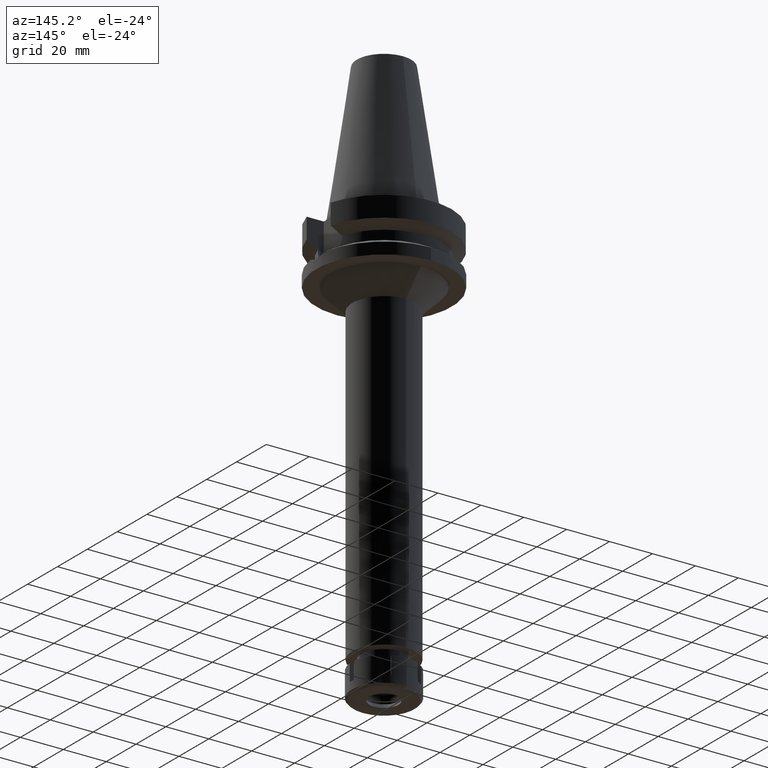
[diagram: clean part render]
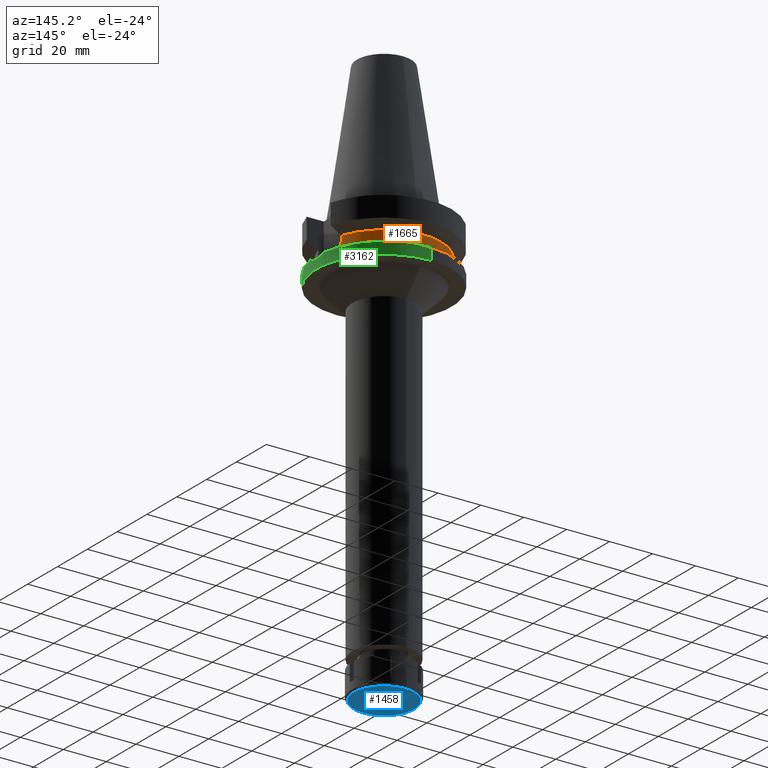
[diagram: same view with three faces highlighted in distinct colors, each labeled with its STEP entity id]
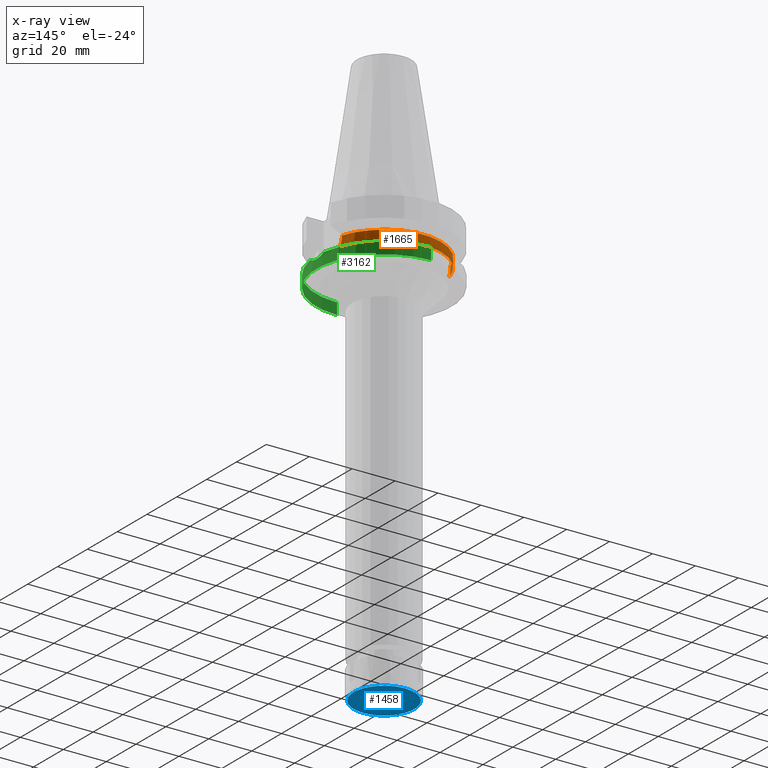
[diagram: x-ray of the same camera — body ghosted, the three highlighted faces saturated]
A machine part, auxiliary view with three faces highlighted in distinct colors.
The next image is the same camera in x-ray (body ghosted, the three faces saturated) — at least one of them is partly hidden behind the body in this view.
Their STEP definitions:

[orange] entity #1665 — the highlighted cylindrical surface (partial cylindrical patch) has radius 26.5 mm, axis along (0, 0, -1).
#12 = LINE ( 'NONE', #878, #2470 ) ;
#58 = CARTESIAN_POINT ( 'NONE',  ( -25.25396593744603635, 8.030896968456861629, -15.59377931114971183 ) ) ;
#80 = CARTESIAN_POINT ( 'NONE',  ( -25.31205759391835741, 7.845621557329842233, -16.75326793494526711 ) ) ;
#147 = VERTEX_POINT ( 'NONE', #156 ) ;
#156 = CARTESIAN_POINT ( 'NONE',  ( 25.24772266958000344, 8.050000000000000711, -14.94999999999999929 ) ) ;
#333 = B_SPLINE_CURVE_WITH_KNOTS ( 'NONE', 3,
 ( #3199, #1832, #1191, #2867, #1212, #1270, #1775, #2295, #956, #2314, #3420, #1793, #406, #1252 ),
 .UNSPECIFIED., .F., .F.,
 ( 4, 2, 2, 1, 1, 2, 2, 4 ),
 ( 0.0000000000000000000, 0.2500000000000009437, 0.3750000000000015543, 0.4375000000000033307, 0.4687500000000041078, 0.4843750000000043854, 0.5000000000000046629, 1.000000000000000000 ),
 .UNSPECIFIED. ) ;
#338 = ORIENTED_EDGE ( 'NONE', *, *, #2262, .T. ) ;
#392 = CARTESIAN_POINT ( 'NONE',  ( -25.36818304348092923, 7.663708172131208585, -17.48836484279920711 ) ) ;
#406 = CARTESIAN_POINT ( 'NONE',  ( 25.24772266957999989, 8.049999999999997158, -15.58999073683368231 ) ) ;
#443 = CARTESIAN_POINT ( 'NONE',  ( -25.24772266958000344, 8.050000000000000711, -14.94999999999999929 ) ) ;
#496 = VERTEX_POINT ( 'NONE', #443 ) ;
#581 = CARTESIAN_POINT ( 'NONE',  ( -25.43788636140676118, 7.435506143573715754, -18.11669712823439582 ) ) ;
#629 = FACE_OUTER_BOUND ( 'NONE', #1456, .T. ) ;
#676 = CARTESIAN_POINT ( 'NONE',  ( -25.24772216375000156, 8.050001586471001502, -14.45224487658000001 ) ) ;
#696 = DIRECTION ( 'NONE',  ( 2.936344683098950112E-06, -9.209448786821828654E-06, 0.9999999999532819261 ) ) ;
#780 = CARTESIAN_POINT ( 'NONE',  ( -25.53175183775000079, 7.097862220092999941, -18.74774300138999905 ) ) ;
#812 = EDGE_CURVE ( 'NONE', #2800, #496, #12, .T. ) ;
#870 = DIRECTION ( 'NONE',  ( 0.0000000000000000000, 0.0000000000000000000, -1.000000000000000000 ) ) ;
#878 = CARTESIAN_POINT ( 'NONE',  ( -25.24772216375000156, 8.050001586471001502, -14.45224487658000001 ) ) ;
#889 = ORIENTED_EDGE ( 'NONE', *, *, #812, .F. ) ;
#919 = CARTESIAN_POINT ( 'NONE',  ( -25.24772266958000344, 8.050000000000018474, -15.27000127552689257 ) ) ;
#934 = CARTESIAN_POINT ( 'NONE',  ( -25.53175183775000079, 7.097862220092999941, -18.74774300138999905 ) ) ;
#956 = CARTESIAN_POINT ( 'NONE',  ( 25.32844325893252346, 7.792538688759774956, -16.96970524096448329 ) ) ;
#979 = CARTESIAN_POINT ( 'NONE',  ( 25.24772266958000344, 8.050000000000000711, -14.94999999999999929 ) ) ;
#1024 = EDGE_CURVE ( 'NONE', #2675, #147, #333, .T. ) ;
#1137 = EDGE_CURVE ( 'NONE', #2800, #3029, #2770, .T. ) ;
#1191 = CARTESIAN_POINT ( 'NONE',  ( 25.44392473217111217, 7.408251102527466436, -18.11706870839235961 ) ) ;
#1192 = CARTESIAN_POINT ( 'NONE',  ( -25.27269574104415994, 7.971769475022786544, -16.08146184953518443 ) ) ;
#1204 = AXIS2_PLACEMENT_3D ( 'NONE', #1864, #3289, #1884 ) ;
#1212 = CARTESIAN_POINT ( 'NONE',  ( 25.37572817765628130, 7.637723572231256419, -17.49814693643544317 ) ) ;
#1252 = CARTESIAN_POINT ( 'NONE',  ( 25.24772266958000344, 8.050000000000000711, -14.94999999999999929 ) ) ;
#1270 = CARTESIAN_POINT ( 'NONE',  ( 25.35411833098577716, 7.708843546321428875, -17.27003765534291801 ) ) ;
#1456 = EDGE_LOOP ( 'NONE', ( #2362, #3618, #3219, #338, #2572, #889 ) ) ;
#1494 = CARTESIAN_POINT ( 'NONE',  ( -25.30215616128705136, 7.877576232114727794, -16.61085564858990082 ) ) ;
#1665 = ADVANCED_FACE ( 'NONE', ( #629 ), #2024, .T. ) ;
#1758 = CARTESIAN_POINT ( 'NONE',  ( 0.0000000000000000000, 2.183790172239999946E-14, 78.32000000000000739 ) ) ;
#1775 = CARTESIAN_POINT ( 'NONE',  ( 25.34387967354659565, 7.742345491376008582, -17.15662736174673242 ) ) ;
#1776 = CARTESIAN_POINT ( 'NONE',  ( -25.31954463780457587, 7.821394976198481785, -16.85491936549455971 ) ) ;
#1793 = CARTESIAN_POINT ( 'NONE',  ( 25.27269246206562769, 7.973290322427787125, -16.24535685338613078 ) ) ;
#1807 = CARTESIAN_POINT ( 'NONE',  ( 0.0000000000000000000, 0.0000000000000000000, -18.74774300138999905 ) ) ;
#1832 = CARTESIAN_POINT ( 'NONE',  ( 25.48481820018147914, 7.266687417059710441, -18.43221401827390693 ) ) ;
#1864 = CARTESIAN_POINT ( 'NONE',  ( 0.0000000000000000000, 1.065333950388000029E-14, -14.45225699861000024 ) ) ;
#1884 = DIRECTION ( 'NONE',  ( -0.9527442516822307583, 0.3037735849057093818, 0.0000000000000000000 ) ) ;
#1962 = EDGE_CURVE ( 'NONE', #147, #3029, #2081, .T. ) ;
#1964 = DIRECTION ( 'NONE',  ( 0.0000000000000000000, -1.000000000000000000, 0.0000000000000000000 ) ) ;
#2024 = CYLINDRICAL_SURFACE ( 'NONE', #3282, 26.50000000000000000 ) ;
#2036 = CARTESIAN_POINT ( 'NONE',  ( -25.29454717857531421, 7.902012029789251102, -16.48868902742450970 ) ) ;
#2081 = LINE ( 'NONE', #979, #2119 ) ;
#2119 = VECTOR ( 'NONE', #696, 1000.000000000000114 ) ;
#2197 = EDGE_CURVE ( 'NONE', #496, #3022, #2325, .T. ) ;
#2262 = EDGE_CURVE ( 'NONE', #2675, #3022, #3510, .T. ) ;
#2295 = CARTESIAN_POINT ( 'NONE',  ( 25.33292553851901729, 7.777985707518484837, -17.02558215514788742 ) ) ;
#2314 = CARTESIAN_POINT ( 'NONE',  ( 25.32550226136619642, 7.802082245155945728, -16.93251888163005248 ) ) ;
#2315 = CARTESIAN_POINT ( 'NONE',  ( -25.31652055493196229, 7.831184758220201658, -16.81426458566338411 ) ) ;
#2325 = B_SPLINE_CURVE_WITH_KNOTS ( 'NONE', 3,
 ( #2570, #919, #58, #1192, #2609, #2036, #1494, #80, #2315, #1776, #3439, #392, #581, #934 ),
 .UNSPECIFIED., .F., .F.,
 ( 4, 2, 2, 1, 1, 2, 2, 4 ),
 ( 0.0000000000000000000, 0.2500000000000045519, 0.3750000000000056066, 0.4375000000000061062, 0.4687500000000052736, 0.4843750000000049960, 0.5000000000000046629, 1.000000000000000000 ),
 .UNSPECIFIED. ) ;
#2362 = ORIENTED_EDGE ( 'NONE', *, *, #1137, .T. ) ;
#2386 = DIRECTION ( 'NONE',  ( 0.0000000000000000000, 1.000000000000000000, 0.0000000000000000000 ) ) ;
#2421 = CARTESIAN_POINT ( 'NONE',  ( 25.24772413102000002, 8.049995416383998403, -14.45229202342000008 ) ) ;
#2470 = VECTOR ( 'NONE', #3604, 1000.000000000000114 ) ;
#2570 = CARTESIAN_POINT ( 'NONE',  ( -25.24772266958000344, 8.050000000000000711, -14.94999999999999929 ) ) ;
#2572 = ORIENTED_EDGE ( 'NONE', *, *, #2197, .F. ) ;
#2609 = CARTESIAN_POINT ( 'NONE',  ( -25.28049982587671707, 7.946985634402442322, -16.24435369772060156 ) ) ;
#2675 = VERTEX_POINT ( 'NONE', #3381 ) ;
#2770 = CIRCLE ( 'NONE', #1204, 26.50000000000000711 ) ;
#2800 = VERTEX_POINT ( 'NONE', #676 ) ;
#2867 = CARTESIAN_POINT ( 'NONE',  ( 25.39164478449283280, 7.584820969905370802, -17.65194245033607245 ) ) ;
#2990 = DIRECTION ( 'NONE',  ( 0.0000000000000000000, 0.0000000000000000000, 1.000000000000000000 ) ) ;
#3022 = VERTEX_POINT ( 'NONE', #780 ) ;
#3029 = VERTEX_POINT ( 'NONE', #2421 ) ;
#3199 = CARTESIAN_POINT ( 'NONE',  ( 25.53175183775000079, 7.097862220092999941, -18.74774300138999905 ) ) ;
#3219 = ORIENTED_EDGE ( 'NONE', *, *, #1024, .F. ) ;
#3282 = AXIS2_PLACEMENT_3D ( 'NONE', #1758, #870, #1964 ) ;
#3289 = DIRECTION ( 'NONE',  ( 0.0000000000000000000, 0.0000000000000000000, -1.000000000000000000 ) ) ;
#3381 = CARTESIAN_POINT ( 'NONE',  ( 25.53175183775000079, 7.097862220092999941, -18.74774300138999905 ) ) ;
#3420 = CARTESIAN_POINT ( 'NONE',  ( 25.32419265906722927, 7.806329682138398951, -16.91574545218148984 ) ) ;
#3439 = CARTESIAN_POINT ( 'NONE',  ( -25.32121872273786067, 7.815971166074239029, -16.87703378351244154 ) ) ;
#3510 = CIRCLE ( 'NONE', #3636, 26.50000000000000000 ) ;
#3604 = DIRECTION ( 'NONE',  ( -1.016224662221004237E-06, -3.187251308830015568E-06, -0.9999999999944043649 ) ) ;
#3618 = ORIENTED_EDGE ( 'NONE', *, *, #1962, .F. ) ;
#3636 = AXIS2_PLACEMENT_3D ( 'NONE', #1807, #2990, #2386 ) ;

[blue] entity #1458 — the highlighted planar face has unit normal (0, 0, -1).
#25 = DIRECTION ( 'NONE',  ( 0.0000000000000000000, 0.0000000000000000000, -1.000000000000000000 ) ) ;
#69 = VERTEX_POINT ( 'NONE', #3408 ) ;
#226 = AXIS2_PLACEMENT_3D ( 'NONE', #2137, #776, #2782 ) ;
#407 = CARTESIAN_POINT ( 'NONE',  ( 0.0000000000000000000, 0.0000000000000000000, -12.50000000000000000 ) ) ;
#506 = DIRECTION ( 'NONE',  ( 0.0000000000000000000, 1.000000000000000000, 0.0000000000000000000 ) ) ;
#549 = CARTESIAN_POINT ( 'NONE',  ( 0.0000000000000000000, 0.0000000000000000000, -12.50000000000000000 ) ) ;
#713 = DIRECTION ( 'NONE',  ( 0.0000000000000000000, 1.000000000000000000, 0.0000000000000000000 ) ) ;
#768 = EDGE_CURVE ( 'NONE', #2434, #69, #3126, .T. ) ;
#776 = DIRECTION ( 'NONE',  ( 0.0000000000000000000, 0.0000000000000000000, -1.000000000000000000 ) ) ;
#787 = CARTESIAN_POINT ( 'NONE',  ( 0.0000000000000000000, 0.0000000000000000000, -12.50000000000000000 ) ) ;
#1022 = PLANE ( 'NONE',  #226 ) ;
#1116 = CARTESIAN_POINT ( 'NONE',  ( 0.0000000000000000000, 14.09999999999999964, -12.50000000000000000 ) ) ;
#1201 = ORIENTED_EDGE ( 'NONE', *, *, #2376, .F. ) ;
#1243 = AXIS2_PLACEMENT_3D ( 'NONE', #549, #1667, #3058 ) ;
#1273 = EDGE_LOOP ( 'NONE', ( #1201, #2612 ) ) ;
#1293 = FACE_OUTER_BOUND ( 'NONE', #3355, .T. ) ;
#1300 = AXIS2_PLACEMENT_3D ( 'NONE', #2824, #25, #2785 ) ;
#1354 = AXIS2_PLACEMENT_3D ( 'NONE', #407, #3554, #713 ) ;
#1458 = ADVANCED_FACE ( 'NONE', ( #1293, #3526 ), #1022, .T. ) ;
#1667 = DIRECTION ( 'NONE',  ( 0.0000000000000000000, 0.0000000000000000000, 1.000000000000000000 ) ) ;
#1819 = CIRCLE ( 'NONE', #1243, 14.09999999999999964 ) ;
#1926 = VERTEX_POINT ( 'NONE', #2981 ) ;
#2001 = CIRCLE ( 'NONE', #1354, 6.750000000000000000 ) ;
#2137 = CARTESIAN_POINT ( 'NONE',  ( 0.0000000000000000000, 0.0000000000000000000, -12.50000000000000000 ) ) ;
#2376 = EDGE_CURVE ( 'NONE', #1926, #3370, #2001, .T. ) ;
#2418 = AXIS2_PLACEMENT_3D ( 'NONE', #787, #3020, #506 ) ;
#2434 = VERTEX_POINT ( 'NONE', #1116 ) ;
#2612 = ORIENTED_EDGE ( 'NONE', *, *, #3317, .F. ) ;
#2782 = DIRECTION ( 'NONE',  ( 0.0000000000000000000, -1.000000000000000000, 0.0000000000000000000 ) ) ;
#2785 = DIRECTION ( 'NONE',  ( 0.0000000000000000000, -1.000000000000000000, 0.0000000000000000000 ) ) ;
#2824 = CARTESIAN_POINT ( 'NONE',  ( 0.0000000000000000000, 0.0000000000000000000, -12.50000000000000000 ) ) ;
#2843 = CARTESIAN_POINT ( 'NONE',  ( 0.0000000000000000000, -6.750000000000000000, -12.50000000000000000 ) ) ;
#2883 = ORIENTED_EDGE ( 'NONE', *, *, #768, .F. ) ;
#2886 = ORIENTED_EDGE ( 'NONE', *, *, #3610, .F. ) ;
#2981 = CARTESIAN_POINT ( 'NONE',  ( 0.0000000000000000000, 6.750000000000000000, -12.50000000000000000 ) ) ;
#3020 = DIRECTION ( 'NONE',  ( 0.0000000000000000000, 0.0000000000000000000, 1.000000000000000000 ) ) ;
#3058 = DIRECTION ( 'NONE',  ( 0.0000000000000000000, -1.000000000000000000, 0.0000000000000000000 ) ) ;
#3126 = CIRCLE ( 'NONE', #2418, 14.09999999999999964 ) ;
#3220 = CIRCLE ( 'NONE', #1300, 6.750000000000000000 ) ;
#3317 = EDGE_CURVE ( 'NONE', #3370, #1926, #3220, .T. ) ;
#3355 = EDGE_LOOP ( 'NONE', ( #2883, #2886 ) ) ;
#3370 = VERTEX_POINT ( 'NONE', #2843 ) ;
#3408 = CARTESIAN_POINT ( 'NONE',  ( 0.0000000000000000000, -14.09999999999999964, -12.50000000000000000 ) ) ;
#3526 = FACE_BOUND ( 'NONE', #1273, .T. ) ;
#3554 = DIRECTION ( 'NONE',  ( 0.0000000000000000000, 0.0000000000000000000, -1.000000000000000000 ) ) ;
#3610 = EDGE_CURVE ( 'NONE', #69, #2434, #1819, .T. ) ;

[green] entity #3162 — the highlighted cylindrical surface (partial cylindrical patch) has radius 31.5 mm, axis along (0, 0, -1).
#20 = DIRECTION ( 'NONE',  ( 0.0000000000000000000, 0.0000000000000000000, 1.000000000000000000 ) ) ;
#106 = VERTEX_POINT ( 'NONE', #684 ) ;
#181 = EDGE_CURVE ( 'NONE', #1752, #1790, #1799, .T. ) ;
#250 = EDGE_CURVE ( 'NONE', #509, #322, #1359, .T. ) ;
#280 = CARTESIAN_POINT ( 'NONE',  ( 31.50000021573999476, -0.7653414349337818168, -23.00000000000000000 ) ) ;
#322 = VERTEX_POINT ( 'NONE', #1125 ) ;
#324 = CARTESIAN_POINT ( 'NONE',  ( 31.50000021574000186, 5.577860925501999478E-14, -23.00000098614000166 ) ) ;
#441 = EDGE_CURVE ( 'NONE', #1790, #322, #966, .T. ) ;
#468 = CARTESIAN_POINT ( 'NONE',  ( 31.28509562281688616, 3.748056192915890428, -22.12936999272494987 ) ) ;
#501 = FACE_OUTER_BOUND ( 'NONE', #1445, .T. ) ;
#509 = VERTEX_POINT ( 'NONE', #1256 ) ;
#550 = VECTOR ( 'NONE', #3229, 1000.000000000000000 ) ;
#684 = CARTESIAN_POINT ( 'NONE',  ( 31.17899877608999759, -4.485536235554000051, -21.63449434733000132 ) ) ;
#798 = CARTESIAN_POINT ( 'NONE',  ( 31.42561277379007123, 2.162678577827146231, -22.70434105561160365 ) ) ;
#819 = ORIENTED_EDGE ( 'NONE', *, *, #250, .F. ) ;
#924 = ORIENTED_EDGE ( 'NONE', *, *, #441, .T. ) ;
#943 = CARTESIAN_POINT ( 'NONE',  ( 31.23204689280586877, -4.116798345750644295, -21.88193073970543168 ) ) ;
#966 = CIRCLE ( 'NONE', #1485, 31.50000000000000000 ) ;
#1010 = CARTESIAN_POINT ( 'NONE',  ( 31.41959241031158001, 2.247869166912275229, -22.67985827421038891 ) ) ;
#1030 = CARTESIAN_POINT ( 'NONE',  ( 31.36322091674241364, 3.008416737955144526, -22.44999847303934359 ) ) ;
#1044 = EDGE_CURVE ( 'NONE', #1379, #2799, #1206, .T. ) ;
#1072 = DIRECTION ( 'NONE',  ( 0.0000000000000000000, 1.099151708819000049E-13, -1.000000000000000000 ) ) ;
#1098 = CARTESIAN_POINT ( 'NONE',  ( 31.40780092006638213, -2.406958960367775457, -22.63179098406836331 ) ) ;
#1115 = CARTESIAN_POINT ( 'NONE',  ( 31.40202791472522392, -2.481453087932796731, -22.60822425881057995 ) ) ;
#1125 = CARTESIAN_POINT ( 'NONE',  ( 0.0000000000000000000, 31.50000000000000000, -27.00000000000000000 ) ) ;
#1160 = DIRECTION ( 'NONE',  ( 0.0000000000000000000, -1.000000000000000000, 0.0000000000000000000 ) ) ;
#1176 = EDGE_CURVE ( 'NONE', #106, #1379, #2328, .T. ) ;
#1195 = DIRECTION ( 'NONE',  ( 0.0000000000000000000, 0.0000000000000000000, -1.000000000000000000 ) ) ;
#1206 = B_SPLINE_CURVE_WITH_KNOTS ( 'NONE', 3,
 ( #3537, #2407, #1305, #1331, #1607, #2686, #2723, #798, #1010, #2709, #3553, #1568, #1030, #468, #3270 ),
 .UNSPECIFIED., .F., .F.,
 ( 4, 2, 2, 1, 1, 1, 2, 2, 4 ),
 ( 0.0000000000000000000, 0.2499999999999924505, 0.3749999999999887867, 0.4374999999999867883, 0.4687499999999857891, 0.4843749999999858447, 0.4921874999999857336, 0.4999999999999856781, 1.000000000000000000 ),
 .UNSPECIFIED. ) ;
#1247 = AXIS2_PLACEMENT_3D ( 'NONE', #2974, #3244, #1533 ) ;
#1256 = CARTESIAN_POINT ( 'NONE',  ( 0.0000000000000000000, 31.50000000000000000, -21.63449434733000132 ) ) ;
#1305 = CARTESIAN_POINT ( 'NONE',  ( 31.49278141925054797, 0.7713071346962580010, -22.97266833081081927 ) ) ;
#1331 = CARTESIAN_POINT ( 'NONE',  ( 31.47112502978219339, 1.356847492382204923, -22.88727726257393869 ) ) ;
#1359 = LINE ( 'NONE', #3011, #2826 ) ;
#1379 = VERTEX_POINT ( 'NONE', #2415 ) ;
#1427 = DIRECTION ( 'NONE',  ( 0.9898094849552905306, -0.1423979757318985240, 0.0000000000000000000 ) ) ;
#1441 = ORIENTED_EDGE ( 'NONE', *, *, #1176, .F. ) ;
#1445 = EDGE_LOOP ( 'NONE', ( #2499, #2019, #924, #819, #1474, #2336, #1441 ) ) ;
#1461 = CARTESIAN_POINT ( 'NONE',  ( 0.0000000000000000000, -31.50000000000000000, -27.00000000000000000 ) ) ;
#1474 = ORIENTED_EDGE ( 'NONE', *, *, #2309, .T. ) ;
#1485 = AXIS2_PLACEMENT_3D ( 'NONE', #2575, #20, #1160 ) ;
#1533 = DIRECTION ( 'NONE',  ( 0.0000000000000000000, 1.000000000000000000, 0.0000000000000000000 ) ) ;
#1568 = CARTESIAN_POINT ( 'NONE',  ( 31.41415831007162041, 2.322424573564905170, -22.65772117385812834 ) ) ;
#1607 = CARTESIAN_POINT ( 'NONE',  ( 31.46210153417036537, 1.552447016951704173, -22.85142317599341055 ) ) ;
#1617 = CYLINDRICAL_SURFACE ( 'NONE', #3393, 31.50000000000000000 ) ;
#1622 = CARTESIAN_POINT ( 'NONE',  ( 31.17899877608999759, -4.485536235554000051, -21.63449434733000132 ) ) ;
#1634 = EDGE_CURVE ( 'NONE', #106, #1752, #3341, .T. ) ;
#1752 = VERTEX_POINT ( 'NONE', #3624 ) ;
#1790 = VERTEX_POINT ( 'NONE', #1461 ) ;
#1799 = LINE ( 'NONE', #2062, #550 ) ;
#1878 = CARTESIAN_POINT ( 'NONE',  ( 0.0000000000000000000, 2.183790172239999946E-14, 78.32000000000000739 ) ) ;
#2019 = ORIENTED_EDGE ( 'NONE', *, *, #181, .T. ) ;
#2062 = CARTESIAN_POINT ( 'NONE',  ( 0.0000000000000000000, -31.50000000000000000, -21.63449434733000132 ) ) ;
#2214 = CARTESIAN_POINT ( 'NONE',  ( 31.41248047080929240, -2.345020287372178824, -22.65087923802269287 ) ) ;
#2309 = EDGE_CURVE ( 'NONE', #509, #2799, #3583, .T. ) ;
#2323 = CARTESIAN_POINT ( 'NONE',  ( 31.41180841616105113, -2.353993861648279395, -22.64813844412291743 ) ) ;
#2328 = B_SPLINE_CURVE_WITH_KNOTS ( 'NONE', 3,
 ( #1622, #943, #2473, #3601, #2828, #3347, #2602, #1115, #1098, #3030, #2323, #2214, #3445, #280, #324 ),
 .UNSPECIFIED., .F., .F.,
 ( 4, 2, 2, 1, 1, 1, 2, 2, 4 ),
 ( 0.0000000000000000000, 0.2500000000000106581, 0.3750000000000155431, 0.4375000000000180966, 0.4687500000000197620, 0.4843750000000208167, 0.4921875000000209277, 0.5000000000000209832, 1.000000000000000000 ),
 .UNSPECIFIED. ) ;
#2336 = ORIENTED_EDGE ( 'NONE', *, *, #1044, .F. ) ;
#2407 = CARTESIAN_POINT ( 'NONE',  ( 31.50000021574000186, 0.3826689642409739633, -22.99999999999999645 ) ) ;
#2415 = CARTESIAN_POINT ( 'NONE',  ( 31.50000021574000186, 5.577860925501999478E-14, -23.00000098614000166 ) ) ;
#2473 = CARTESIAN_POINT ( 'NONE',  ( 31.27810294784140410, -3.746771247884152611, -22.08603490982953232 ) ) ;
#2499 = ORIENTED_EDGE ( 'NONE', *, *, #1634, .T. ) ;
#2575 = CARTESIAN_POINT ( 'NONE',  ( 0.0000000000000000000, 2.183790172239999946E-14, -27.00000000000000000 ) ) ;
#2602 = CARTESIAN_POINT ( 'NONE',  ( 31.38990833648323076, -2.631620583838013783, -22.55864791704626882 ) ) ;
#2683 = CARTESIAN_POINT ( 'NONE',  ( 31.17899877608999759, 4.485536235554000051, -21.63449434733000132 ) ) ;
#2686 = CARTESIAN_POINT ( 'NONE',  ( 31.44585924206910121, 1.845582540999242793, -22.78622007545735428 ) ) ;
#2705 = DIRECTION ( 'NONE',  ( 0.0000000000000000000, 0.0000000000000000000, -1.000000000000000000 ) ) ;
#2709 = CARTESIAN_POINT ( 'NONE',  ( 31.41694880808156043, 2.284353645612529959, -22.66909252095898708 ) ) ;
#2723 = CARTESIAN_POINT ( 'NONE',  ( 31.43706133384756995, 1.992083385690587516, -22.75076404286858889 ) ) ;
#2799 = VERTEX_POINT ( 'NONE', #2683 ) ;
#2809 = AXIS2_PLACEMENT_3D ( 'NONE', #3152, #1195, #1427 ) ;
#2826 = VECTOR ( 'NONE', #1072, 1000.000000000000000 ) ;
#2828 = CARTESIAN_POINT ( 'NONE',  ( 31.35448291913163388, -3.025772410711823124, -22.41206993336584219 ) ) ;
#2974 = CARTESIAN_POINT ( 'NONE',  ( 0.0000000000000000000, 0.0000000000000000000, -21.63449434733000132 ) ) ;
#3011 = CARTESIAN_POINT ( 'NONE',  ( 0.0000000000000000000, 31.50000000000000000, -21.63449434733000132 ) ) ;
#3027 = DIRECTION ( 'NONE',  ( 0.0000000000000000000, -1.000000000000000000, 0.0000000000000000000 ) ) ;
#3030 = CARTESIAN_POINT ( 'NONE',  ( 31.41021361154545843, -2.375162425186048143, -22.64163351048041051 ) ) ;
#3152 = CARTESIAN_POINT ( 'NONE',  ( 0.0000000000000000000, 0.0000000000000000000, -21.63449434733000132 ) ) ;
#3162 = ADVANCED_FACE ( 'NONE', ( #501 ), #1617, .T. ) ;
#3229 = DIRECTION ( 'NONE',  ( 0.0000000000000000000, -1.105773104655000034E-13, -1.000000000000000000 ) ) ;
#3244 = DIRECTION ( 'NONE',  ( 0.0000000000000000000, 0.0000000000000000000, -1.000000000000000000 ) ) ;
#3270 = CARTESIAN_POINT ( 'NONE',  ( 31.17899877608999759, 4.485536235554000051, -21.63449434733000132 ) ) ;
#3341 = CIRCLE ( 'NONE', #2809, 31.50000000000001421 ) ;
#3347 = CARTESIAN_POINT ( 'NONE',  ( 31.37853686788771768, -2.762253510850353866, -22.51183027677570436 ) ) ;
#3393 = AXIS2_PLACEMENT_3D ( 'NONE', #1878, #2705, #3027 ) ;
#3445 = CARTESIAN_POINT ( 'NONE',  ( 31.47112772256698676, -1.555196946114425494, -22.89003045180241358 ) ) ;
#3537 = CARTESIAN_POINT ( 'NONE',  ( 31.50000021574000186, 5.577860925501999478E-14, -23.00000098614000166 ) ) ;
#3553 = CARTESIAN_POINT ( 'NONE',  ( 31.41517230738297783, 2.308670586034844430, -22.66185457918687618 ) ) ;
#3583 = CIRCLE ( 'NONE', #1247, 31.50000000000000000 ) ;
#3601 = CARTESIAN_POINT ( 'NONE',  ( 31.33669893787412164, -3.204466956669268729, -22.33739390977522632 ) ) ;
#3624 = CARTESIAN_POINT ( 'NONE',  ( 0.0000000000000000000, -31.50000000000000000, -21.63449434733000132 ) ) ;